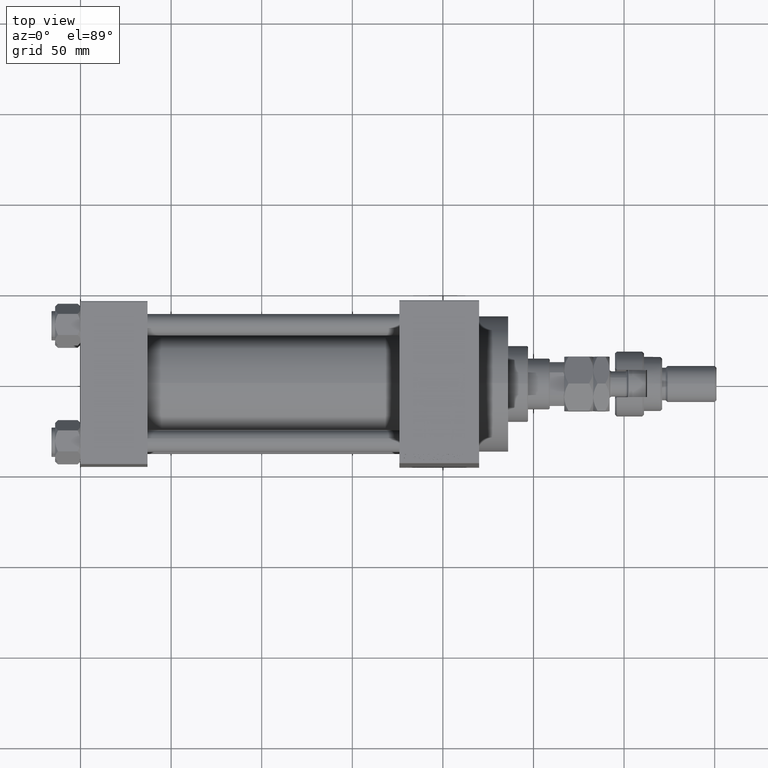
[diagram: clean part render]
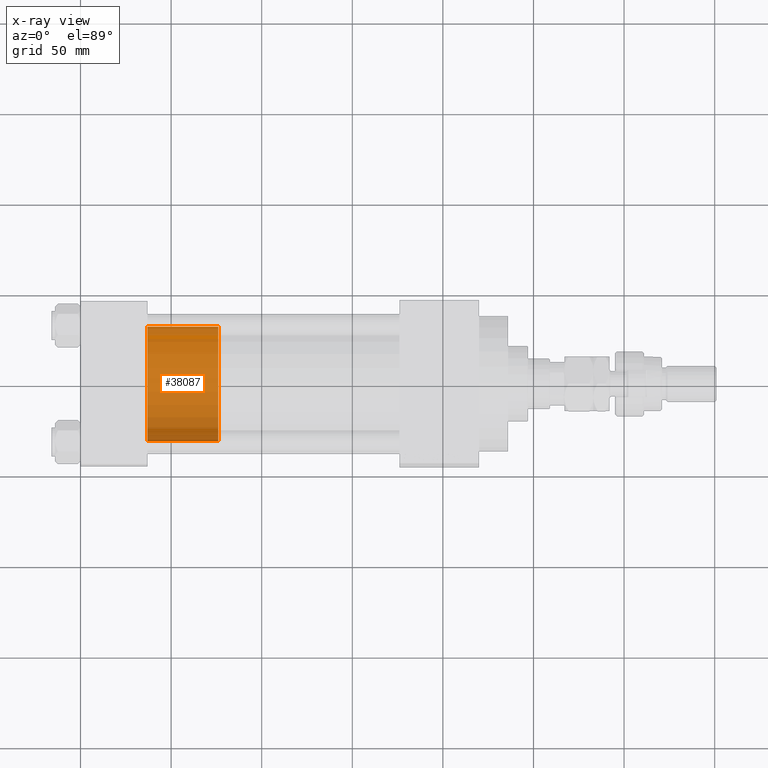
[diagram: x-ray — body ghosted, one internal face saturated and labeled with its STEP entity id]
A machine part, top view, then the same camera in x-ray: the body is ghosted and one INTERNAL B-rep face — a face not visible from any outside direction — is saturated and labeled: STEP entity #38087.
In plain terms, the highlighted cylindrical surface (partial cylindrical patch) has radius 31.5 mm, axis along (-1, 0, 0).
Its self-contained STEP definition (entity closure, byte-faithful):
#790 = CARTESIAN_POINT ( 'NONE',  ( -31.50000000000000000, 0.000000000000000000, 0.000000000000000000 ) ) ;
#1759 = ORIENTED_EDGE ( 'NONE', *, *, #13870, .T. ) ;
#4478 = EDGE_CURVE ( 'NONE', #27814, #43712, #43243, .T. ) ;
#5311 = ORIENTED_EDGE ( 'NONE', *, *, #4478, .F. ) ;
#8271 = DIRECTION ( 'NONE',  ( -0.000000000000000000, -0.000000000000000000, -1.000000000000000000 ) ) ;
#8437 = VERTEX_POINT ( 'NONE', #790 ) ;
#9326 = CARTESIAN_POINT ( 'NONE',  ( 0.000000000000000000, 0.000000000000000000, 39.00000000000000000 ) ) ;
#10163 = CARTESIAN_POINT ( 'NONE',  ( 0.000000000000000000, 0.000000000000000000, 39.00000000000000000 ) ) ;
#11120 = EDGE_CURVE ( 'NONE', #43712, #8437, #24230, .T. ) ;
#12260 = LINE ( 'NONE', #16815, #14459 ) ;
#12727 = EDGE_CURVE ( 'NONE', #25718, #8437, #19264, .T. ) ;
#13123 = FACE_OUTER_BOUND ( 'NONE', #13433, .T. ) ;
#13433 = EDGE_LOOP ( 'NONE', ( #5311, #1759, #48737, #38515 ) ) ;
#13870 = EDGE_CURVE ( 'NONE', #27814, #25718, #12260, .T. ) ;
#14424 = AXIS2_PLACEMENT_3D ( 'NONE', #15222, #19263, #19513 ) ;
#14459 = VECTOR ( 'NONE', #47461, 1000.000000000000000 ) ;
#15222 = CARTESIAN_POINT ( 'NONE',  ( 0.000000000000000000, 0.000000000000000000, 0.000000000000000000 ) ) ;
#16815 = CARTESIAN_POINT ( 'NONE',  ( 31.50000000000000000, 3.857637417314162689E-15, 39.00000000000000000 ) ) ;
#16937 = CARTESIAN_POINT ( 'NONE',  ( 31.50000000000000000, 3.857637417314162689E-15, 0.000000000000000000 ) ) ;
#19263 = DIRECTION ( 'NONE',  ( 0.000000000000000000, 0.000000000000000000, 1.000000000000000000 ) ) ;
#19264 = CIRCLE ( 'NONE', #14424, 31.50000000000000000 ) ;
#19513 = DIRECTION ( 'NONE',  ( 1.000000000000000000, 0.000000000000000000, 0.000000000000000000 ) ) ;
#20979 = DIRECTION ( 'NONE',  ( -0.000000000000000000, -0.000000000000000000, -1.000000000000000000 ) ) ;
#22326 = DIRECTION ( 'NONE',  ( 0.000000000000000000, 0.000000000000000000, 1.000000000000000000 ) ) ;
#23166 = CARTESIAN_POINT ( 'NONE',  ( -31.50000000000000000, 0.000000000000000000, 39.00000000000000000 ) ) ;
#24230 = LINE ( 'NONE', #39695, #27296 ) ;
#24777 = DIRECTION ( 'NONE',  ( -1.000000000000000000, 0.000000000000000000, 0.000000000000000000 ) ) ;
#25622 = DIRECTION ( 'NONE',  ( 1.000000000000000000, 0.000000000000000000, 0.000000000000000000 ) ) ;
#25718 = VERTEX_POINT ( 'NONE', #16937 ) ;
#26438 = CARTESIAN_POINT ( 'NONE',  ( 31.50000000000000000, 3.857637417314162689E-15, 39.00000000000000000 ) ) ;
#27296 = VECTOR ( 'NONE', #8271, 1000.000000000000000 ) ;
#27814 = VERTEX_POINT ( 'NONE', #26438 ) ;
#38087 = ADVANCED_FACE ( 'NONE', ( #13123 ), #44030, .T. ) ;
#38281 = AXIS2_PLACEMENT_3D ( 'NONE', #9326, #20979, #24777 ) ;
#38412 = AXIS2_PLACEMENT_3D ( 'NONE', #10163, #22326, #25622 ) ;
#38515 = ORIENTED_EDGE ( 'NONE', *, *, #11120, .F. ) ;
#39695 = CARTESIAN_POINT ( 'NONE',  ( -31.50000000000000000, 0.000000000000000000, 39.00000000000000000 ) ) ;
#43243 = CIRCLE ( 'NONE', #38412, 31.50000000000000000 ) ;
#43712 = VERTEX_POINT ( 'NONE', #23166 ) ;
#44030 = CYLINDRICAL_SURFACE ( 'NONE', #38281, 31.50000000000000000 ) ;
#47461 = DIRECTION ( 'NONE',  ( -0.000000000000000000, -0.000000000000000000, -1.000000000000000000 ) ) ;
#48737 = ORIENTED_EDGE ( 'NONE', *, *, #12727, .T. ) ;